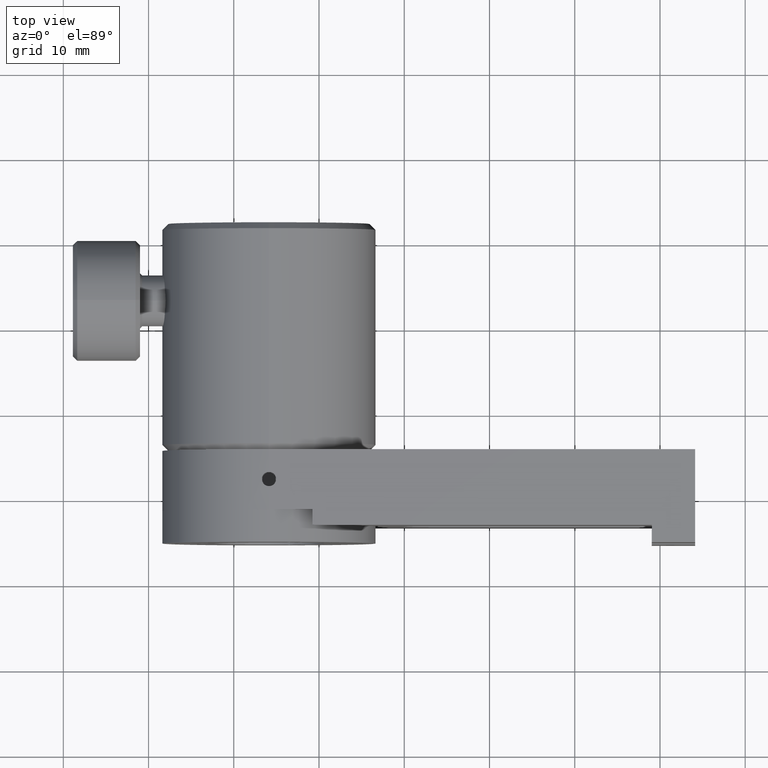
[diagram: clean part render]
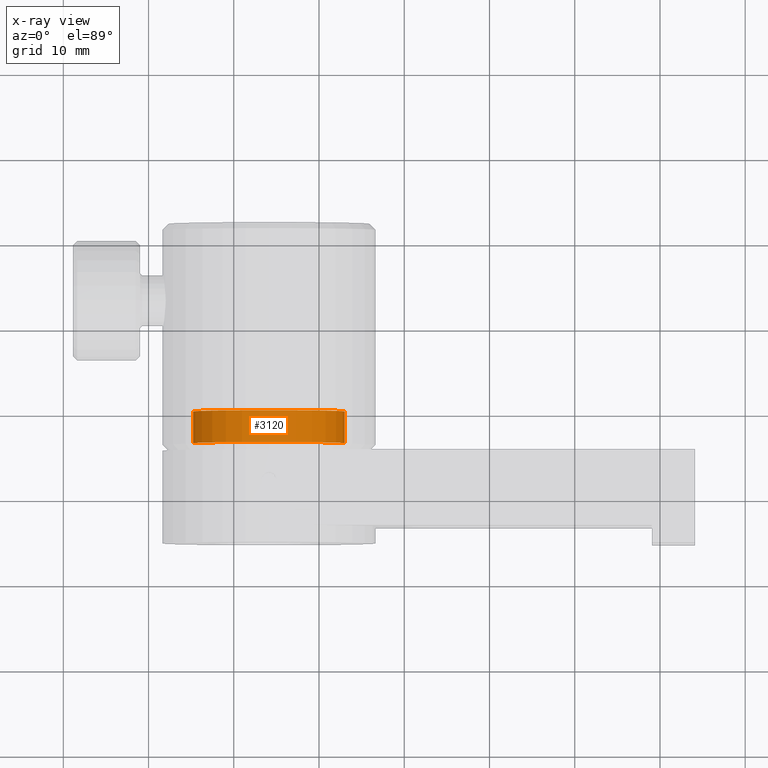
[diagram: x-ray — body ghosted, one internal face saturated and labeled with its STEP entity id]
A machine part, top view, then the same camera in x-ray: the body is ghosted and one INTERNAL B-rep face — a face not visible from any outside direction — is saturated and labeled: STEP entity #3120.
In plain terms, the highlighted cylindrical surface (partial cylindrical patch) has radius 8.89 mm, axis along (0, 1, 0).
Its self-contained STEP definition (entity closure, byte-faithful):
#1 = VERTEX_POINT ( 'NONE', #1485 ) ;
#114 = DIRECTION ( 'NONE',  ( 0.0000000000000000000, 1.000000000000000000, 0.0000000000000000000 ) ) ;
#137 = LINE ( 'NONE', #2555, #2687 ) ;
#361 = DIRECTION ( 'NONE',  ( 0.0000000000000000000, 1.000000000000000000, 0.0000000000000000000 ) ) ;
#406 = ORIENTED_EDGE ( 'NONE', *, *, #1336, .F. ) ;
#414 = AXIS2_PLACEMENT_3D ( 'NONE', #1191, #361, #1248 ) ;
#450 = AXIS2_PLACEMENT_3D ( 'NONE', #2936, #2057, #1822 ) ;
#533 = ORIENTED_EDGE ( 'NONE', *, *, #1009, .T. ) ;
#939 = CARTESIAN_POINT ( 'NONE',  ( -4.766933356108617100, 6.587134787764891400, -1.700886306799096900E-013 ) ) ;
#1009 = EDGE_CURVE ( 'NONE', #2807, #1, #1181, .T. ) ;
#1181 = LINE ( 'NONE', #2376, #1492 ) ;
#1191 = CARTESIAN_POINT ( 'NONE',  ( 4.123066643891380800, 10.82893478776489400, 1.457167719820518700E-013 ) ) ;
#1248 = DIRECTION ( 'NONE',  ( -1.000000000000000000, 0.0000000000000000000, -3.552366734105304900E-014 ) ) ;
#1254 = CARTESIAN_POINT ( 'NONE',  ( -4.766933356108617100, 10.32093478776489600, -1.689999196754676700E-013 ) ) ;
#1336 = EDGE_CURVE ( 'NONE', #1672, #1, #3604, .T. ) ;
#1459 = ORIENTED_EDGE ( 'NONE', *, *, #2119, .F. ) ;
#1485 = CARTESIAN_POINT ( 'NONE',  ( 13.01306664389138000, 10.32093478776489600, 4.615221746440134300E-013 ) ) ;
#1492 = VECTOR ( 'NONE', #1834, 1000.000000000000000 ) ;
#1672 = VERTEX_POINT ( 'NONE', #1254 ) ;
#1730 = EDGE_CURVE ( 'NONE', #3515, #2807, #2026, .T. ) ;
#1822 = DIRECTION ( 'NONE',  ( -1.000000000000000000, 0.0000000000000000000, -3.552366734105304900E-014 ) ) ;
#1834 = DIRECTION ( 'NONE',  ( 0.0000000000000000000, 1.000000000000000000, 0.0000000000000000000 ) ) ;
#2026 = CIRCLE ( 'NONE', #450, 8.889999999999998800 ) ;
#2057 = DIRECTION ( 'NONE',  ( 0.0000000000000000000, 1.000000000000000000, 0.0000000000000000000 ) ) ;
#2119 = EDGE_CURVE ( 'NONE', #3515, #1672, #137, .T. ) ;
#2271 = DIRECTION ( 'NONE',  ( 0.0000000000000000000, 1.000000000000000000, 0.0000000000000000000 ) ) ;
#2376 = CARTESIAN_POINT ( 'NONE',  ( 13.01306664389138000, 10.82893478776489400, 4.626108856484553500E-013 ) ) ;
#2555 = CARTESIAN_POINT ( 'NONE',  ( -4.766933356108617100, 10.82893478776489400, -1.700886306799096900E-013 ) ) ;
#2674 = FACE_OUTER_BOUND ( 'NONE', #2927, .T. ) ;
#2687 = VECTOR ( 'NONE', #2271, 1000.000000000000000 ) ;
#2807 = VERTEX_POINT ( 'NONE', #3624 ) ;
#2927 = EDGE_LOOP ( 'NONE', ( #3459, #533, #406, #1459 ) ) ;
#2936 = CARTESIAN_POINT ( 'NONE',  ( 4.123066643891380800, 6.587134787764891400, 1.457167719820518700E-013 ) ) ;
#3120 = ADVANCED_FACE ( 'NONE', ( #2674 ), #3229, .T. ) ;
#3162 = AXIS2_PLACEMENT_3D ( 'NONE', #3451, #114, #3436 ) ;
#3229 = CYLINDRICAL_SURFACE ( 'NONE', #414, 8.889999999999998800 ) ;
#3436 = DIRECTION ( 'NONE',  ( -1.000000000000000000, 0.0000000000000000000, -3.552366734105304900E-014 ) ) ;
#3451 = CARTESIAN_POINT ( 'NONE',  ( 4.123066643891380800, 10.32093478776489600, 1.457167719820518700E-013 ) ) ;
#3459 = ORIENTED_EDGE ( 'NONE', *, *, #1730, .T. ) ;
#3515 = VERTEX_POINT ( 'NONE', #939 ) ;
#3604 = CIRCLE ( 'NONE', #3162, 8.889999999999998800 ) ;
#3624 = CARTESIAN_POINT ( 'NONE',  ( 13.01306664389137800, 6.587134787764891400, 4.626108856484552500E-013 ) ) ;